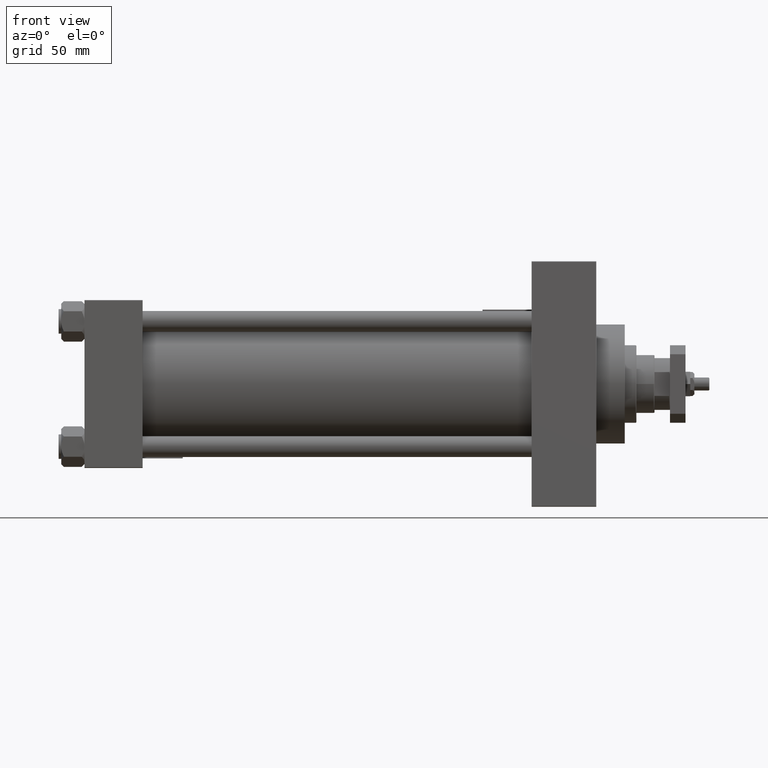
[diagram: clean part render]
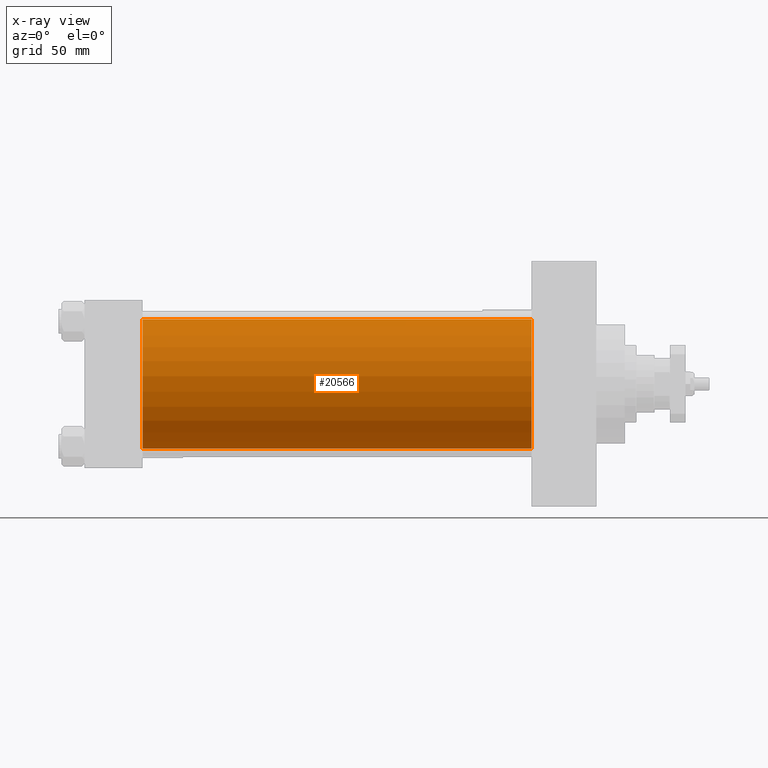
[diagram: x-ray — body ghosted, one internal face saturated and labeled with its STEP entity id]
A machine part, front view, then the same camera in x-ray: the body is ghosted and one INTERNAL B-rep face — a face not visible from any outside direction — is saturated and labeled: STEP entity #20566.
In plain terms, the highlighted cylindrical surface (partial cylindrical patch) has radius 50 mm, axis along (-1, -0, -0).
Its self-contained STEP definition (entity closure, byte-faithful):
#1239 = DIRECTION ( 'NONE',  ( 1.000000000000000000, 0.000000000000000000, 0.000000000000000000 ) ) ;
#2995 = CIRCLE ( 'NONE', #4822, 50.00000000000000000 ) ;
#4535 = DIRECTION ( 'NONE',  ( -1.000000000000000000, -0.000000000000000000, -0.000000000000000000 ) ) ;
#4822 = AXIS2_PLACEMENT_3D ( 'NONE', #41191, #11167, #49871 ) ;
#5617 = CARTESIAN_POINT ( 'NONE',  ( 346.0000000000000000, 3.521148781771555838E-15, -50.00000000000000000 ) ) ;
#5886 = ORIENTED_EDGE ( 'NONE', *, *, #13310, .F. ) ;
#6875 = AXIS2_PLACEMENT_3D ( 'NONE', #14645, #41310, #18604 ) ;
#7658 = EDGE_LOOP ( 'NONE', ( #19677, #53645, #41853, #5886 ) ) ;
#11167 = DIRECTION ( 'NONE',  ( 1.000000000000000000, 0.000000000000000000, 0.000000000000000000 ) ) ;
#11708 = EDGE_CURVE ( 'NONE', #45207, #34694, #33560, .T. ) ;
#13177 = CARTESIAN_POINT ( 'NONE',  ( 346.0000000000000000, -2.602085213965210642E-15, 50.00000000000000000 ) ) ;
#13310 = EDGE_CURVE ( 'NONE', #45207, #50821, #42977, .T. ) ;
#14645 = CARTESIAN_POINT ( 'NONE',  ( 346.0000000000000000, -2.602085213965210642E-15, 0.000000000000000000 ) ) ;
#17717 = CARTESIAN_POINT ( 'NONE',  ( 346.0000000000000000, -2.602085213965210642E-15, 50.00000000000000000 ) ) ;
#18604 = DIRECTION ( 'NONE',  ( 0.000000000000000000, 0.000000000000000000, 1.000000000000000000 ) ) ;
#19637 = DIRECTION ( 'NONE',  ( -1.000000000000000000, -0.000000000000000000, -0.000000000000000000 ) ) ;
#19677 = ORIENTED_EDGE ( 'NONE', *, *, #11708, .T. ) ;
#20566 = ADVANCED_FACE ( 'NONE', ( #45507 ), #24209, .F. ) ;
#21846 = VECTOR ( 'NONE', #4535, 1000.000000000000000 ) ;
#24209 = CYLINDRICAL_SURFACE ( 'NONE', #6875, 50.00000000000000000 ) ;
#24303 = CARTESIAN_POINT ( 'NONE',  ( 346.0000000000000000, 3.521148781771555838E-15, -50.00000000000000000 ) ) ;
#31164 = CARTESIAN_POINT ( 'NONE',  ( 45.00000000000000000, 3.521148781771555838E-15, -50.00000000000000000 ) ) ;
#31298 = CARTESIAN_POINT ( 'NONE',  ( 346.0000000000000000, -2.602085213965210642E-15, 0.000000000000000000 ) ) ;
#33560 = CIRCLE ( 'NONE', #40691, 50.00000000000000000 ) ;
#34260 = EDGE_CURVE ( 'NONE', #50821, #44568, #2995, .T. ) ;
#34694 = VERTEX_POINT ( 'NONE', #24303 ) ;
#40666 = LINE ( 'NONE', #5617, #54516 ) ;
#40691 = AXIS2_PLACEMENT_3D ( 'NONE', #31298, #1239, #42600 ) ;
#41191 = CARTESIAN_POINT ( 'NONE',  ( 45.00000000000000000, -2.602085213965210642E-15, 0.000000000000000000 ) ) ;
#41310 = DIRECTION ( 'NONE',  ( -1.000000000000000000, -0.000000000000000000, -0.000000000000000000 ) ) ;
#41853 = ORIENTED_EDGE ( 'NONE', *, *, #34260, .F. ) ;
#42600 = DIRECTION ( 'NONE',  ( 0.000000000000000000, 0.000000000000000000, -1.000000000000000000 ) ) ;
#42977 = LINE ( 'NONE', #17717, #21846 ) ;
#44568 = VERTEX_POINT ( 'NONE', #31164 ) ;
#44767 = EDGE_CURVE ( 'NONE', #34694, #44568, #40666, .T. ) ;
#45207 = VERTEX_POINT ( 'NONE', #13177 ) ;
#45507 = FACE_OUTER_BOUND ( 'NONE', #7658, .T. ) ;
#49871 = DIRECTION ( 'NONE',  ( 0.000000000000000000, 0.000000000000000000, -1.000000000000000000 ) ) ;
#50118 = CARTESIAN_POINT ( 'NONE',  ( 45.00000000000000000, -2.602085213965210642E-15, 50.00000000000000000 ) ) ;
#50821 = VERTEX_POINT ( 'NONE', #50118 ) ;
#53645 = ORIENTED_EDGE ( 'NONE', *, *, #44767, .T. ) ;
#54516 = VECTOR ( 'NONE', #19637, 1000.000000000000000 ) ;